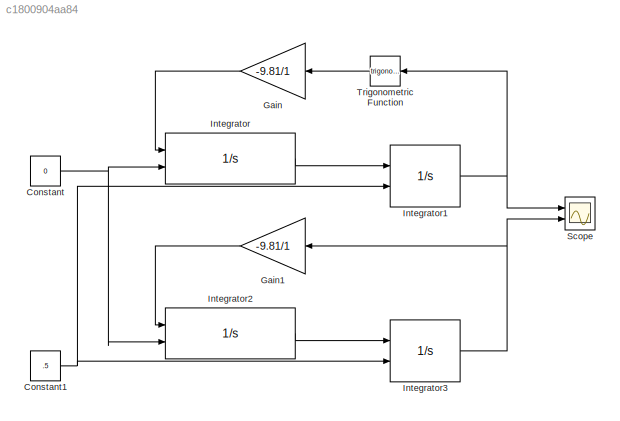
MODEL slx_c1800904aa84
KIND model
CONFIG AbsTol = auto
CONFIG EnableMultiTasking = off
CONFIG FixedStep = auto
CONFIG MaxStep = auto
CONFIG MinStep = auto
CONFIG RelTol = 1e-3
CONFIG SampleTimeConstraint = Unconstrained
CONFIG Solver = VariableStepAuto
CONFIG SolverName = VariableStepAuto
CONFIG StartTime = 0.0
CONFIG StopTime = 10.0
BLOCK [Constant] Constant
  Value = 0
BLOCK [Constant] Constant1
  Value = .5
BLOCK [Gain] Gain
  Gain = -9.81/1
BLOCK [Gain] Gain1
  Gain = -9.81/1
BLOCK [Integrator] Integrator
  InitialConditionSource = external
  Ports = [2, 1]
BLOCK [Integrator] Integrator1
  InitialConditionSource = external
  Ports = [2, 1]
BLOCK [Integrator] Integrator2
  InitialConditionSource = external
  Ports = [2, 1]
BLOCK [Integrator] Integrator3
  InitialConditionSource = external
  Ports = [2, 1]
BLOCK [Scope] Scope
  Floating = off
  NumInputPorts = 2
  Ports = [2]
  ScopeSpecificationString = Simulink.scopes.TimeScopeBlockCfg('CurrentConfiguration', extmgr.ConfigurationSet(extmgr.Configuration('Core','General UI',true),extmgr.Configuration('Core','Source UI',true),extmgr.Configuration('Sources','WiredSimulink',true),extmgr.Configuration('Visuals','Time Domain',true,'SerializedDisplays',{struct('MinYLimReal','-0.6244','MaxYLimReal','0.62493','YLabelReal','','MinYLimMag','0.00000','MaxYL...<+1373ch>
BLOCK [Trigonometry] Trigonometric Function
  Ports = [1, 1]
NET Constant1:1 -> Integrator1:2, Integrator3:2
NET Constant:1 -> Integrator2:2, Integrator:2
LINE Gain1:1 -> Integrator2:1
LINE Gain:1 -> Integrator:1
NET Integrator1:1 -> Scope:1, Trigonometric Function:1
LINE Integrator2:1 -> Integrator3:1
NET Integrator3:1 -> Gain1:1, Scope:2
LINE Integrator:1 -> Integrator1:1
LINE Trigonometric Function:1 -> Gain:1
note: NET lines group one-source signal fan-out (src -> all destinations, sorted); 1:1 wires keep LINE
